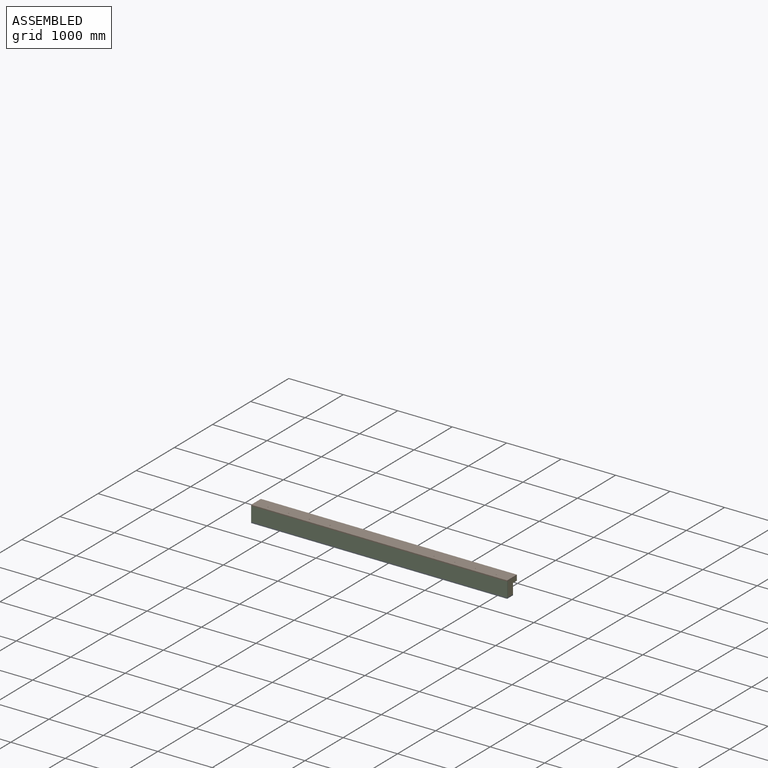
[diagram: assembled view]
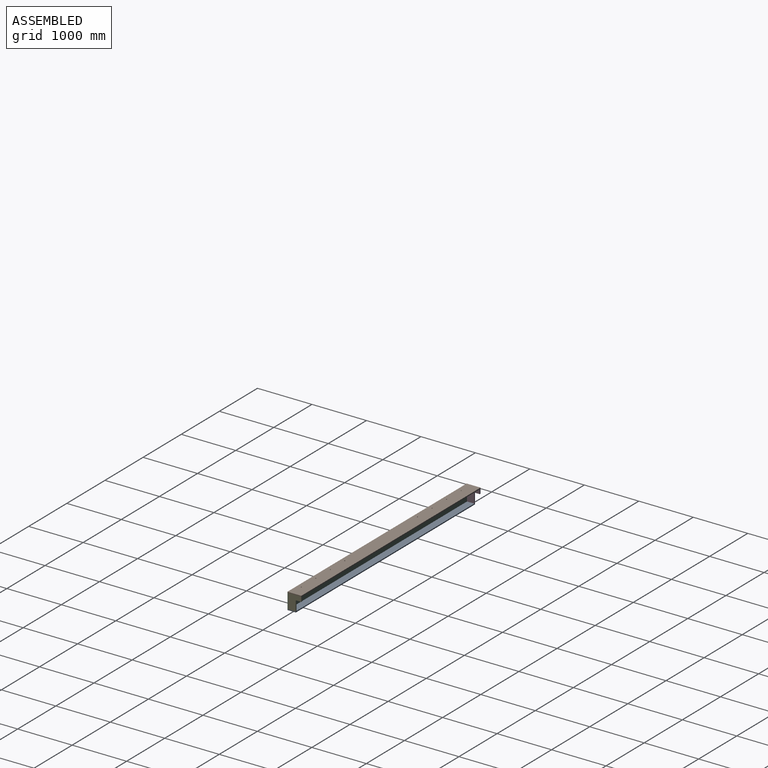
[diagram: assembled view, second angle]
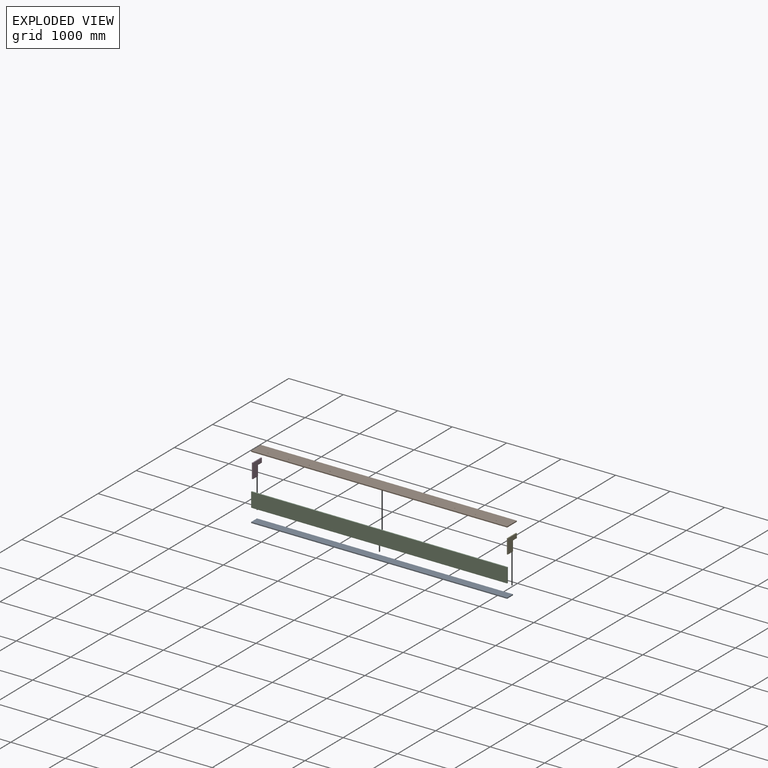
[diagram: exploded view]
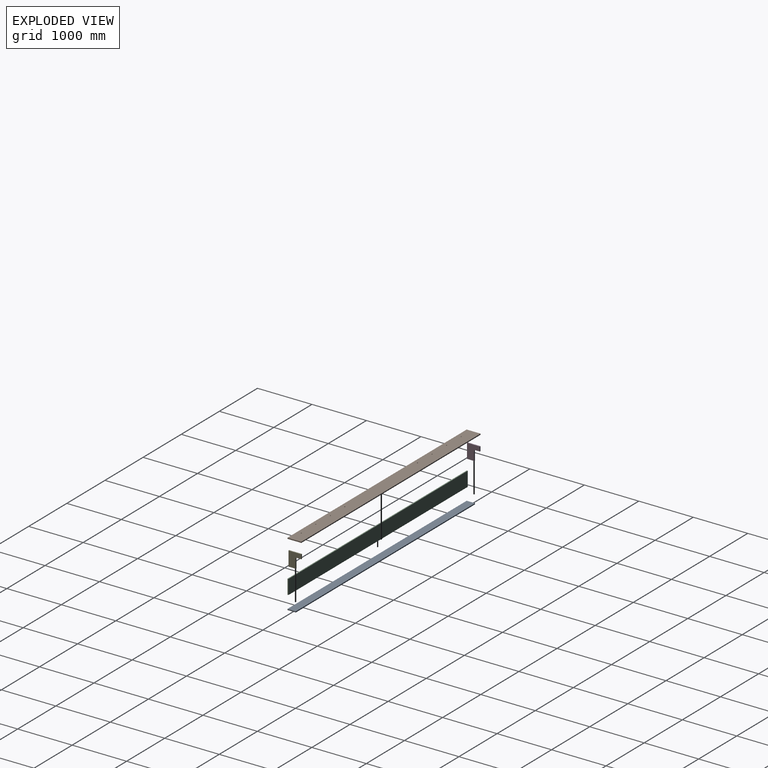
[diagram: exploded view, second angle]
ASSEMBLY  parts=5 mates=4
PART A: 6 faces, bbox 4699x152.4x19.1 mm
  f0: plane 152.4x19.05mm, normal (1,0,0), area 2903.2mm2, adj f1,f3,f4,f5
  f1: plane 4699x152.4mm, normal (0,0,-1), area 716127.6mm2, adj f0,f2,f4,f5
  f2: plane 152.4x19.05mm, normal (-1,0,0), area 2903.2mm2, adj f1,f3,f4,f5
  f3: plane 4699x152.4mm, normal (0,0,1), area 716127.6mm2, adj f0,f2,f4,f5
  f4: plane 4699x19.05mm, normal (0,-1,0), area 89516mm2, adj f0,f1,f2,f3
  f5: plane 4699x19.05mm, normal (0,1,0), area 89515.9mm2, adj f0,f1,f2,f3
PART B: 14 faces, bbox 4699x254x19.1 mm
  f0: plane 4699x254mm, normal (0,0,-1), area 1191962.5mm2, adj f1,f3,f4,f5,f6,f7,f8,f9
  f1: plane 4699x19.05mm, normal (0,1,0), area 89516mm2, adj f0,f2,f4,f5
  f2: plane 4699x254mm, normal (0,0,1), area 1191962.5mm2, adj f1,f3,f4,f5,f6,f7,f8,f9
  f3: plane 4699x19.05mm, normal (0,-1,0), area 89516mm2, adj f0,f2,f4,f5
  f4: plane 254x19.05mm, normal (1,0,0), area 4838.7mm2, adj f0,f1,f2,f3
  f5: plane 254x19.05mm, normal (-1,0,0), area 4838.7mm2, adj f0,f1,f2,f3
  f6: cylinder r=7.94mm len=19.05mm, axis (0,0,1), area 950.1mm2, adj f0,f2
  f7: cylinder r=7.94mm len=19.05mm, axis (0,0,1), area 950.1mm2, adj f0,f2
  f8: cylinder r=7.94mm len=19.05mm, axis (0,0,1), area 950.1mm2, adj f0,f2
  f9: cylinder r=7.94mm len=19.05mm, axis (0,0,1), area 950.1mm2, adj f0,f2
  f10: cylinder r=7.94mm len=19.05mm, axis (0,0,1), area 950.1mm2, adj f0,f2
  f11: cylinder r=7.94mm len=19.05mm, axis (0,0,1), area 950.1mm2, adj f0,f2
  f12: cylinder r=7.94mm len=19.05mm, axis (0,0,1), area 950.1mm2, adj f0,f2
  f13: cylinder r=7.94mm len=19.05mm, axis (0,0,1), area 950.1mm2, adj f0,f2
PART C: 6 faces, bbox 4699x19.1x266.7 mm
  f0: plane 266.7x19.05mm, normal (1,0,0), area 5080.6mm2, adj f1,f3,f4,f5
  f1: plane 4699x266.7mm, normal (0,1,0), area 1253223.3mm2, adj f0,f2,f3,f4
  f2: plane 266.7x19.05mm, normal (-1,0,0), area 5080.6mm2, adj f1,f3,f4,f5
  f3: plane 4699x19.05mm, normal (0,0,1), area 89516mm2, adj f0,f1,f2,f5
  f4: plane 4699x19.05mm, normal (0,0,-1), area 89516mm2, adj f0,f1,f2,f5
  f5: plane 4699x266.7mm, normal (0,-1,0), area 1253223.3mm2, adj f0,f2,f3,f4
PART D: 8 faces, bbox 19.1x235x266.7 mm
  f0: plane 82.55x19.05mm, normal (0,1,0), area 1572.6mm2, adj f2,f3,f5,f6
  f1: plane 133.35x19.05mm, normal (0,0,-1), area 2540.3mm2, adj f2,f3,f4,f7
  f2: plane 266.7x234.95mm, normal (1,0,0), area 43951.5mm2, adj f0,f1,f4,f5,f6,f7
  f3: plane 266.7x234.95mm, normal (-1,0,0), area 43951.5mm2, adj f0,f1,f4,f5,f6,f7
  f4: plane 266.7x19.05mm, normal (0,-1,0), area 5080.6mm2, adj f1,f2,f3,f5
  f5: plane 234.95x19.05mm, normal (0,0,1), area 4475.8mm2, adj f0,f2,f3,f4
  f6: plane 101.6x19.05mm, normal (0,0,-1), area 1935.5mm2, adj f0,f2,f3,f7
  f7: plane 184.15x19.05mm, normal (0,1,0), area 3508.1mm2, adj f1,f2,f3,f6
PART E: 8 faces, bbox 19.1x235x266.7 mm
  f0: plane 82.55x19.05mm, normal (0,1,0), area 1572.6mm2, adj f1,f3,f4,f7
  f1: plane 266.7x234.95mm, normal (1,0,0), area 43951.5mm2, adj f0,f2,f4,f5,f6,f7
  f2: plane 133.35x19.05mm, normal (0,0,-1), area 2540.3mm2, adj f1,f3,f5,f6
  f3: plane 266.7x234.95mm, normal (-1,0,0), area 43951.5mm2, adj f0,f2,f4,f5,f6,f7
  f4: plane 234.95x19.05mm, normal (0,0,1), area 4475.8mm2, adj f0,f1,f3,f5
  f5: plane 266.7x19.05mm, normal (0,-1,0), area 5080.6mm2, adj f1,f2,f3,f4
  f6: plane 184.15x19.05mm, normal (0,1,0), area 3508.1mm2, adj f1,f2,f3,f7
  f7: plane 101.6x19.05mm, normal (0,0,-1), area 1935.5mm2, adj f0,f1,f3,f6
PLACE A t=(-219.7,442.43,-263.2)mm fixed
PLACE B t=(-219.7,442.43,-263.2)mm
PLACE C t=(-219.7,442.43,-263.2)mm
PLACE D t=(-219.7,442.43,-263.2)mm
PLACE E t=(-219.7,442.43,-263.2)mm
MATE fastened A.f3 <-> E.f2  axis (0,0,1) through (4479.3,340.83,-244.15)mm
MATE fastened A.f3 <-> D.f1  axis (0,0,1) through (-219.7,340.83,-244.15)mm
MATE fastened A.f3 <-> C.f4  axis (0,0,1) through (2129.8,188.43,-244.15)mm
MATE fastened C.f3 <-> B.f0  axis (0,0,1) through (2129.8,188.43,22.55)mm
